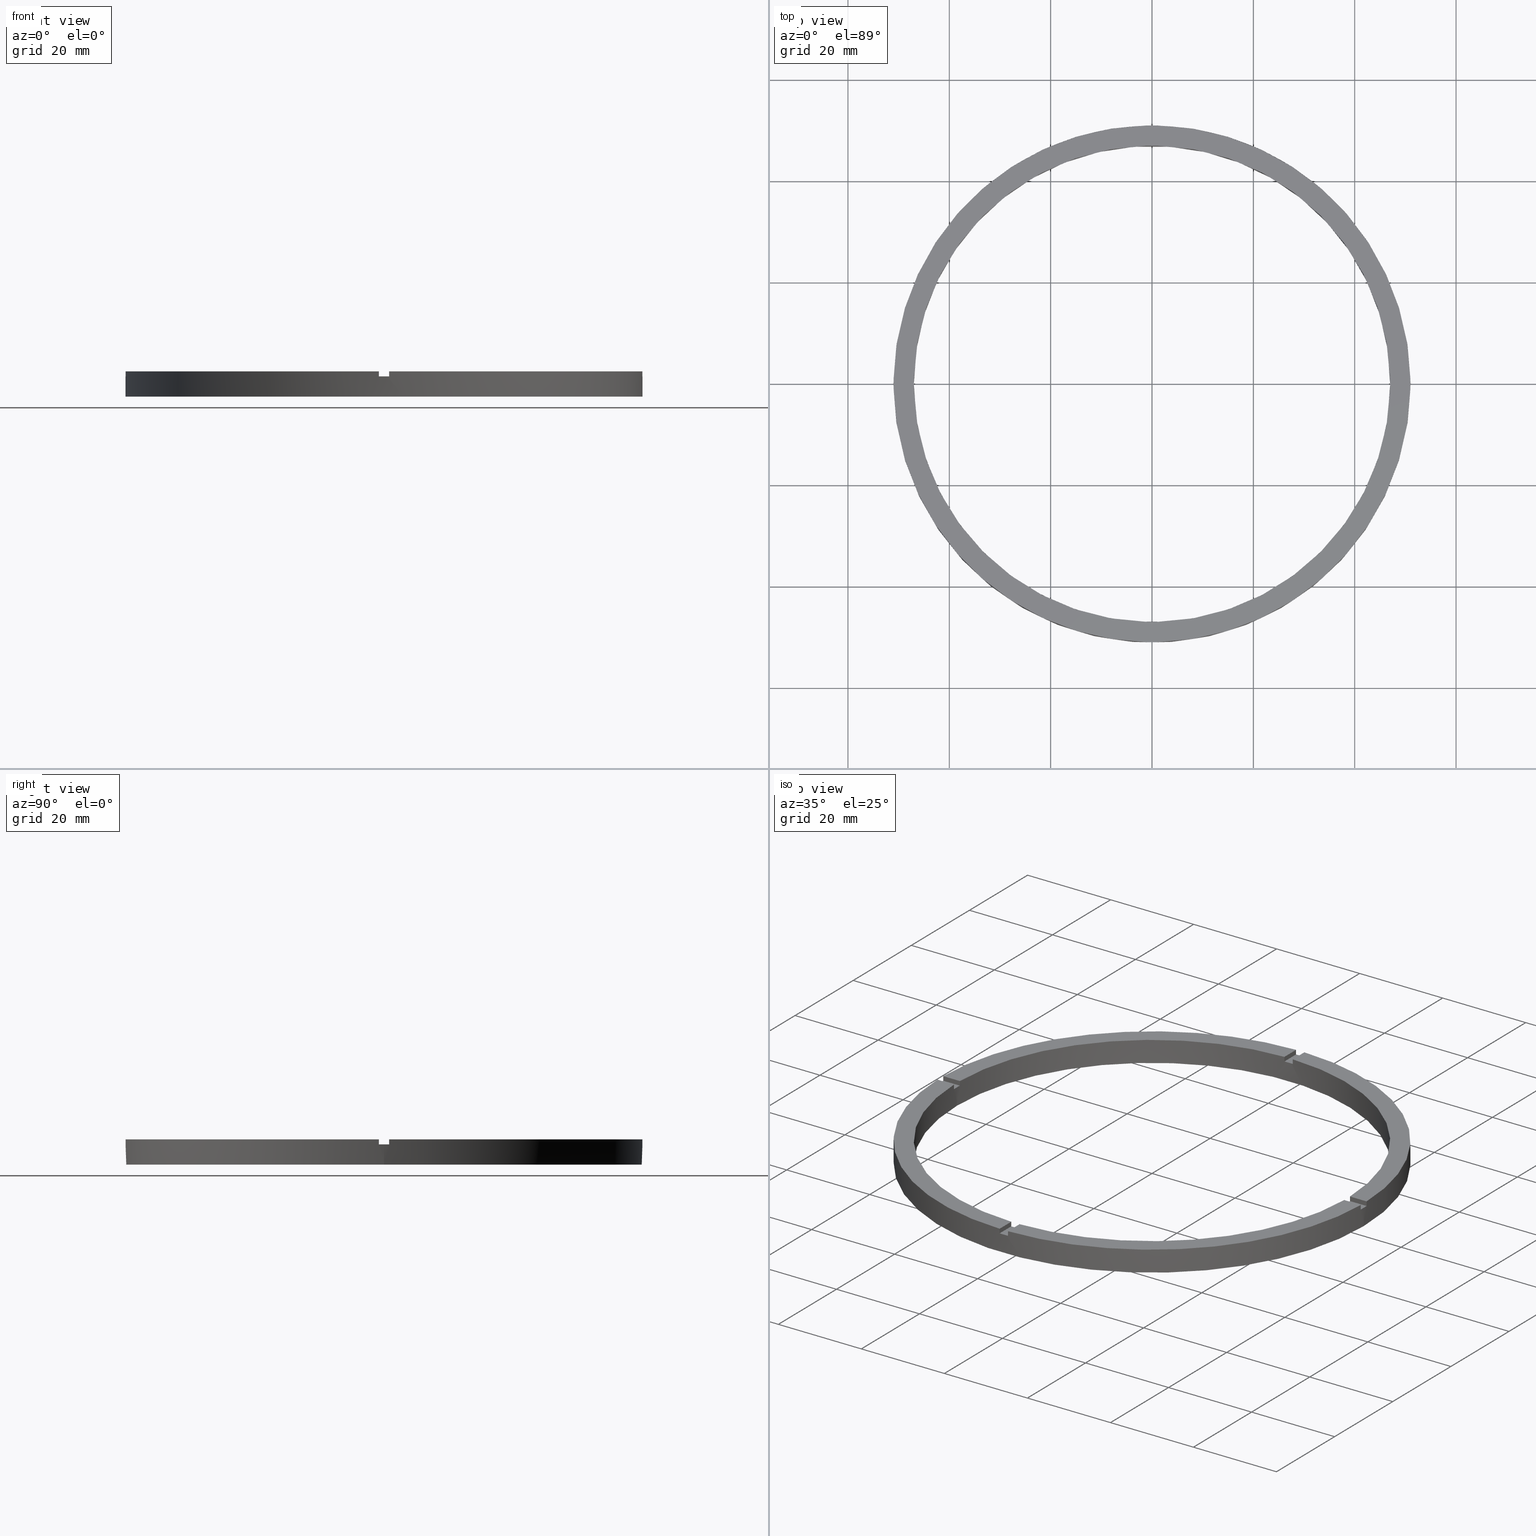
[diagram: canonical four-view strip — front | top / right | iso, engineering-drawing reading convention]
A machine part, canonical four-view strip (front | top / right | iso — engineering-drawing reading convention). The complete STEP part file that produces these views, byte-faithful:
ISO-10303-21;
HEADER;
FILE_DESCRIPTION (( 'STEP AP203' ),
    '1' );
FILE_NAME ('514208.step',
    '2024-12-26T02:48:10',
    ( 'MSI' ),
    ( '' ),
    'SwSTEP 2.0',
    'SolidWorks 2020',
    '' );
FILE_SCHEMA (( 'CONFIG_CONTROL_DESIGN' ));
ENDSEC;

DATA;
#1 = EDGE_LOOP ( 'NONE', ( #37, #546, #415, #716, #717, #163 ) ) ;
#2 = CARTESIAN_POINT ( 'NONE',  ( -1.000000000000157874, -41.00000000000017764, 4.000000000000000000 ) ) ;
#3 = ORIENTED_EDGE ( 'NONE', *, *, #684, .T. ) ;
#4 = CC_DESIGN_DATE_AND_TIME_ASSIGNMENT ( #149, #508, ( #778 ) ) ;
#5 = EDGE_CURVE ( 'NONE', #689, #21, #20, .T. ) ;
#6 = ORIENTED_EDGE ( 'NONE', *, *, #756, .T. ) ;
#7 = VERTEX_POINT ( 'NONE', #592 ) ;
#8 = ORIENTED_EDGE ( 'NONE', *, *, #259, .F. ) ;
#9 = ORIENTED_EDGE ( 'NONE', *, *, #233, .F. ) ;
#10 =( NAMED_UNIT ( * ) PLANE_ANGLE_UNIT ( ) SI_UNIT ( $, .RADIAN. ) );
#11 = CARTESIAN_POINT ( 'NONE',  ( 0.9999999999999731326, 50.99019513592784136, 5.000000000000000000 ) ) ;
#12 = ORIENTED_EDGE ( 'NONE', *, *, #235, .F. ) ;
#13 = VERTEX_POINT ( 'NONE', #441 ) ;
#14 = ORIENTED_EDGE ( 'NONE', *, *, #779, .T. ) ;
#15 = ORIENTED_EDGE ( 'NONE', *, *, #324, .T. ) ;
#16 = CARTESIAN_POINT ( 'NONE',  ( 51.00000000000000000, 6.245698675651500444E-15, 0.000000000000000000 ) ) ;
#17 = DIRECTION ( 'NONE',  ( 0.000000000000000000, 0.000000000000000000, 1.000000000000000000 ) ) ;
#18 = VERTEX_POINT ( 'NONE', #770 ) ;
#19 = DIRECTION ( 'NONE',  ( -0.000000000000000000, -0.000000000000000000, -1.000000000000000000 ) ) ;
#20 = CIRCLE ( 'NONE', #67, 47.00000000000000711 ) ;
#21 = VERTEX_POINT ( 'NONE', #431 ) ;
#22 = EDGE_LOOP ( 'NONE', ( #679, #639, #382, #766 ) ) ;
#23 = PERSON_AND_ORGANIZATION_ROLE ( 'design_owner' ) ;
#24 = CARTESIAN_POINT ( 'NONE',  ( 0.000000000000000000, 0.000000000000000000, 4.000000000000000000 ) ) ;
#25 = DIRECTION ( 'NONE',  ( 1.000000000000000000, 0.000000000000000000, -0.000000000000000000 ) ) ;
#26 = AXIS2_PLACEMENT_3D ( 'NONE', #166, #512, #633 ) ;
#27 = EDGE_LOOP ( 'NONE', ( #170, #231, #36, #544 ) ) ;
#28 = VERTEX_POINT ( 'NONE', #439 ) ;
#29 = ORIENTED_EDGE ( 'NONE', *, *, #329, .F. ) ;
#30 = ORIENTED_EDGE ( 'NONE', *, *, #45, .F. ) ;
#31 = APPROVAL_STATUS ( 'not_yet_approved' ) ;
#32 = CC_DESIGN_SECURITY_CLASSIFICATION ( #74, ( #317 ) ) ;
#33 = EDGE_LOOP ( 'NONE', ( #551, #503, #9, #249 ) ) ;
#34 = CARTESIAN_POINT ( 'NONE',  ( -46.98936049788292024, 0.9999999999999692468, 4.000000000000000000 ) ) ;
#35 = EDGE_LOOP ( 'NONE', ( #759, #3, #29, #150 ) ) ;
#36 = ORIENTED_EDGE ( 'NONE', *, *, #100, .T. ) ;
#37 = ORIENTED_EDGE ( 'NONE', *, *, #299, .T. ) ;
#38 =( LENGTH_UNIT ( ) NAMED_UNIT ( * ) SI_UNIT ( .MILLI., .METRE. ) );
#39 = DIRECTION ( 'NONE',  ( 1.000000000000000000, 1.951563910473907735E-16, 0.000000000000000000 ) ) ;
#40 = ADVANCED_FACE ( 'NONE', ( #287 ), #53, .T. ) ;
#41 = VECTOR ( 'NONE', #242, 1000.000000000000000 ) ;
#42 = AXIS2_PLACEMENT_3D ( 'NONE', #347, #624, #315 ) ;
#43 = PLANE ( 'NONE',  #545 ) ;
#44 = CIRCLE ( 'NONE', #26, 47.00000000000000711 ) ;
#45 = EDGE_CURVE ( 'NONE', #232, #728, #306, .T. ) ;
#46 = LINE ( 'NONE', #189, #305 ) ;
#47 = LINE ( 'NONE', #318, #308 ) ;
#48 = CARTESIAN_POINT ( 'NONE',  ( -50.99019513592784136, -1.000000000000031752, 5.000000000000000000 ) ) ;
#49 = AXIS2_PLACEMENT_3D ( 'NONE', #733, #56, #138 ) ;
#50 = APPROVAL_DATE_TIME ( #312, #531 ) ;
#51 = LOCAL_TIME ( 10, 48, 10.00000000000000000, #581 ) ;
#52 = DIRECTION ( 'NONE',  ( 0.000000000000000000, 0.000000000000000000, 1.000000000000000000 ) ) ;
#53 = PLANE ( 'NONE',  #725 ) ;
#54 = CARTESIAN_POINT ( 'NONE',  ( 0.000000000000000000, 0.000000000000000000, 5.000000000000000000 ) ) ;
#55 = AXIS2_PLACEMENT_3D ( 'NONE', #480, #57, #442 ) ;
#56 = DIRECTION ( 'NONE',  ( -0.000000000000000000, 0.000000000000000000, 1.000000000000000000 ) ) ;
#57 = DIRECTION ( 'NONE',  ( 0.000000000000000000, -0.000000000000000000, 1.000000000000000000 ) ) ;
#58 = LINE ( 'NONE', #575, #76 ) ;
#59 = LINE ( 'NONE', #177, #357 ) ;
#60 = VECTOR ( 'NONE', #333, 1000.000000000000000 ) ;
#61 = CARTESIAN_POINT ( 'NONE',  ( -46.98936049788292024, -1.000000000000030864, 5.000000000000000000 ) ) ;
#62 = FACE_OUTER_BOUND ( 'NONE', #681, .T. ) ;
#63 = CIRCLE ( 'NONE', #489, 47.00000000000000711 ) ;
#64 = CIRCLE ( 'NONE', #557, 47.00000000000000711 ) ;
#65 = LINE ( 'NONE', #510, #596 ) ;
#66 = ADVANCED_FACE ( 'NONE', ( #565 ), #673, .T. ) ;
#67 = AXIS2_PLACEMENT_3D ( 'NONE', #474, #720, #523 ) ;
#68 = FACE_OUTER_BOUND ( 'NONE', #481, .T. ) ;
#69 = VECTOR ( 'NONE', #767, 1000.000000000000000 ) ;
#70 =( GEOMETRIC_REPRESENTATION_CONTEXT ( 3 ) GLOBAL_UNCERTAINTY_ASSIGNED_CONTEXT ( ( #783 ) ) GLOBAL_UNIT_ASSIGNED_CONTEXT ( ( #38, #10, #114 ) ) REPRESENTATION_CONTEXT ( 'NONE', 'WORKASPACE' ) );
#71 = FACE_OUTER_BOUND ( 'NONE', #134, .T. ) ;
#72 = CALENDAR_DATE ( 2024, 26, 12 ) ;
#73 = LINE ( 'NONE', #341, #88 ) ;
#74 = SECURITY_CLASSIFICATION ( '', '', #630 ) ;
#75 = DIRECTION ( 'NONE',  ( 1.301042606982605074E-16, -1.000000000000000000, 0.000000000000000000 ) ) ;
#76 = VECTOR ( 'NONE', #219, 1000.000000000000000 ) ;
#77 = ADVANCED_FACE ( 'NONE', ( #564 ), #288, .F. ) ;
#78 = LINE ( 'NONE', #463, #345 ) ;
#79 = LINE ( 'NONE', #127, #346 ) ;
#80 = FACE_OUTER_BOUND ( 'NONE', #279, .T. ) ;
#81 = CIRCLE ( 'NONE', #186, 51.00000000000000000 ) ;
#82 = EDGE_CURVE ( 'NONE', #289, #136, #47, .T. ) ;
#83 = CARTESIAN_POINT ( 'NONE',  ( 0.000000000000000000, 0.000000000000000000, 0.000000000000000000 ) ) ;
#84 = FACE_OUTER_BOUND ( 'NONE', #35, .T. ) ;
#85 = DIRECTION ( 'NONE',  ( -1.000000000000000000, 0.000000000000000000, 0.000000000000000000 ) ) ;
#86 = EDGE_CURVE ( 'NONE', #509, #464, #44, .T. ) ;
#87 = LINE ( 'NONE', #11, #586 ) ;
#88 = VECTOR ( 'NONE', #580, 1000.000000000000000 ) ;
#89 = AXIS2_PLACEMENT_3D ( 'NONE', #117, #547, #674 ) ;
#90 = VECTOR ( 'NONE', #490, 1000.000000000000000 ) ;
#91 = CARTESIAN_POINT ( 'NONE',  ( 40.99999999999998579, 0.9999999999998443467, 5.000000000000000000 ) ) ;
#92 = CIRCLE ( 'NONE', #483, 47.00000000000000711 ) ;
#93 = DIRECTION ( 'NONE',  ( 0.000000000000000000, 0.000000000000000000, 1.000000000000000000 ) ) ;
#94 = LINE ( 'NONE', #603, #113 ) ;
#95 = LINE ( 'NONE', #162, #637 ) ;
#96 = CIRCLE ( 'NONE', #142, 47.00000000000000711 ) ;
#97 = DIRECTION ( 'NONE',  ( 1.301042606982605074E-16, -1.000000000000000000, 0.000000000000000000 ) ) ;
#98 = DIRECTION ( 'NONE',  ( 0.000000000000000000, 0.000000000000000000, 1.000000000000000000 ) ) ;
#99 = LINE ( 'NONE', #169, #640 ) ;
#100 = EDGE_CURVE ( 'NONE', #161, #524, #310, .T. ) ;
#101 = DIRECTION ( 'NONE',  ( -0.000000000000000000, -1.000000000000000000, -0.000000000000000000 ) ) ;
#102 = VECTOR ( 'NONE', #215, 1000.000000000000000 ) ;
#103 = CIRCLE ( 'NONE', #244, 51.00000000000000000 ) ;
#104 = AXIS2_PLACEMENT_3D ( 'NONE', #203, #662, #303 ) ;
#105 = VECTOR ( 'NONE', #688, 1000.000000000000000 ) ;
#106 = PERSON_AND_ORGANIZATION_ROLE ( 'classification_officer' ) ;
#107 = DIRECTION ( 'NONE',  ( 1.000000000000000000, 0.000000000000000000, 0.000000000000000000 ) ) ;
#108 = LINE ( 'NONE', #61, #369 ) ;
#109 = CARTESIAN_POINT ( 'NONE',  ( 0.000000000000000000, 0.000000000000000000, 5.000000000000000000 ) ) ;
#110 = VECTOR ( 'NONE', #218, 1000.000000000000000 ) ;
#111 = PLANE ( 'NONE',  #224 ) ;
#112 = LINE ( 'NONE', #91, #629 ) ;
#113 = VECTOR ( 'NONE', #361, 1000.000000000000000 ) ;
#114 =( NAMED_UNIT ( * ) SI_UNIT ( $, .STERADIAN. ) SOLID_ANGLE_UNIT ( ) );
#115 = DIRECTION ( 'NONE',  ( 1.301042606982605074E-16, -1.000000000000000000, 0.000000000000000000 ) ) ;
#116 = FACE_OUTER_BOUND ( 'NONE', #253, .T. ) ;
#117 = CARTESIAN_POINT ( 'NONE',  ( 0.000000000000000000, 0.000000000000000000, 4.000000000000000000 ) ) ;
#118 = LINE ( 'NONE', #718, #373 ) ;
#119 = LINE ( 'NONE', #426, #623 ) ;
#120 = CARTESIAN_POINT ( 'NONE',  ( 0.000000000000000000, 0.000000000000000000, 5.000000000000000000 ) ) ;
#121 = EDGE_CURVE ( 'NONE', #548, #446, #567, .T. ) ;
#122 = CARTESIAN_POINT ( 'NONE',  ( 0.000000000000000000, 0.000000000000000000, 4.000000000000000000 ) ) ;
#123 = VECTOR ( 'NONE', #296, 1000.000000000000000 ) ;
#124 = DIRECTION ( 'NONE',  ( 0.000000000000000000, 0.000000000000000000, 1.000000000000000000 ) ) ;
#125 = CIRCLE ( 'NONE', #237, 51.00000000000000000 ) ;
#126 = ORIENTED_EDGE ( 'NONE', *, *, #618, .F. ) ;
#127 = CARTESIAN_POINT ( 'NONE',  ( -50.99019513592784136, 0.9999999999999683586, 5.000000000000000000 ) ) ;
#128 = FACE_OUTER_BOUND ( 'NONE', #255, .T. ) ;
#129 = ORIENTED_EDGE ( 'NONE', *, *, #585, .T. ) ;
#130 = DIRECTION ( 'NONE',  ( 0.000000000000000000, 0.000000000000000000, 1.000000000000000000 ) ) ;
#131 = ORIENTED_EDGE ( 'NONE', *, *, #760, .F. ) ;
#132 = DIRECTION ( 'NONE',  ( 0.000000000000000000, 0.000000000000000000, 1.000000000000000000 ) ) ;
#133 = LOCAL_TIME ( 10, 48, 10.00000000000000000, #156 ) ;
#134 = EDGE_LOOP ( 'NONE', ( #141, #435, #280, #429, #691, #126, #536, #8, #424, #269, #556, #495 ) ) ;
#135 = PERSON_AND_ORGANIZATION ( #493, #143 ) ;
#136 = VERTEX_POINT ( 'NONE', #228 ) ;
#137 = AXIS2_PLACEMENT_3D ( 'NONE', #461, #705, #266 ) ;
#138 = DIRECTION ( 'NONE',  ( 1.000000000000000000, 0.000000000000000000, 0.000000000000000000 ) ) ;
#139 = PERSON_AND_ORGANIZATION ( #493, #143 ) ;
#140 = EDGE_CURVE ( 'NONE', #157, #449, #570, .T. ) ;
#141 = ORIENTED_EDGE ( 'NONE', *, *, #610, .T. ) ;
#142 = AXIS2_PLACEMENT_3D ( 'NONE', #498, #553, #378 ) ;
#143 = ORGANIZATION ( 'δָ��', 'δָ��', '' ) ;
#144 = ORIENTED_EDGE ( 'NONE', *, *, #667, .T. ) ;
#145 = DIRECTION ( 'NONE',  ( 0.000000000000000000, 0.000000000000000000, 1.000000000000000000 ) ) ;
#146 = EDGE_CURVE ( 'NONE', #526, #436, #46, .T. ) ;
#147 = LOCAL_TIME ( 10, 48, 10.00000000000000000, #666 ) ;
#148 = ORIENTED_EDGE ( 'NONE', *, *, #684, .F. ) ;
#149 = DATE_AND_TIME ( #660, #147 ) ;
#150 = ORIENTED_EDGE ( 'NONE', *, *, #454, .F. ) ;
#151 = APPROVAL_PERSON_ORGANIZATION ( #397, #774, #468 ) ;
#152 = ORIENTED_EDGE ( 'NONE', *, *, #488, .F. ) ;
#153 = CALENDAR_DATE ( 2024, 26, 12 ) ;
#154 = ORIENTED_EDGE ( 'NONE', *, *, #344, .F. ) ;
#155 = DIRECTION ( 'NONE',  ( 1.000000000000000000, 0.000000000000000000, 0.000000000000000000 ) ) ;
#156 = COORDINATED_UNIVERSAL_TIME_OFFSET ( 8, 0, .AHEAD. ) ;
#157 = VERTEX_POINT ( 'NONE', #34 ) ;
#158 = CALENDAR_DATE ( 2024, 26, 12 ) ;
#159 = ORIENTED_EDGE ( 'NONE', *, *, #206, .T. ) ;
#160 = ORIENTED_EDGE ( 'NONE', *, *, #210, .F. ) ;
#161 = VERTEX_POINT ( 'NONE', #472 ) ;
#162 = CARTESIAN_POINT ( 'NONE',  ( -1.000000000000026867, 46.98936049788292024, 5.000000000000000000 ) ) ;
#163 = ORIENTED_EDGE ( 'NONE', *, *, #703, .T. ) ;
#164 = ADVANCED_FACE ( 'NONE', ( #84 ), #111, .F. ) ;
#165 = CLOSED_SHELL ( 'NONE', ( #453, #314, #236, #66, #256, #197, #722, #172, #699, #286, #502, #40, #555, #619, #475, #164, #214, #311, #77, #611, #496 ) ) ;
#166 = CARTESIAN_POINT ( 'NONE',  ( 0.000000000000000000, 0.000000000000000000, 5.000000000000000000 ) ) ;
#167 = ORIENTED_EDGE ( 'NONE', *, *, #583, .F. ) ;
#168 = ORIENTED_EDGE ( 'NONE', *, *, #709, .F. ) ;
#169 = CARTESIAN_POINT ( 'NONE',  ( -41.00000000000018474, 0.9999999999999703570, 5.000000000000000000 ) ) ;
#170 = ORIENTED_EDGE ( 'NONE', *, *, #487, .F. ) ;
#171 = VERTEX_POINT ( 'NONE', #715 ) ;
#172 = ADVANCED_FACE ( 'NONE', ( #327 ), #599, .T. ) ;
#173 = ORIENTED_EDGE ( 'NONE', *, *, #457, .T. ) ;
#174 = EDGE_LOOP ( 'NONE', ( #144, #748 ) ) ;
#175 = ORIENTED_EDGE ( 'NONE', *, *, #709, .T. ) ;
#176 = CARTESIAN_POINT ( 'NONE',  ( 0.9999999999998427924, -46.98936049788292735, 4.000000000000000000 ) ) ;
#177 = CARTESIAN_POINT ( 'NONE',  ( -47.00000000000000711, 0.000000000000000000, 5.000000000000000000 ) ) ;
#178 = ORIENTED_EDGE ( 'NONE', *, *, #146, .T. ) ;
#179 = ORIENTED_EDGE ( 'NONE', *, *, #213, .T. ) ;
#180 = EDGE_CURVE ( 'NONE', #7, #739, #65, .T. ) ;
#181 = APPROVAL ( #460, 'δָ��' ) ;
#182 = DIRECTION ( 'NONE',  ( 0.000000000000000000, 0.000000000000000000, 1.000000000000000000 ) ) ;
#183 = CARTESIAN_POINT ( 'NONE',  ( -1.000000000000026867, 46.98936049788292024, 5.000000000000000000 ) ) ;
#184 = DIRECTION ( 'NONE',  ( 1.000000000000000000, 0.000000000000000000, 0.000000000000000000 ) ) ;
#185 = EDGE_CURVE ( 'NONE', #13, #232, #319, .T. ) ;
#186 = AXIS2_PLACEMENT_3D ( 'NONE', #579, #754, #410 ) ;
#187 = APPLICATION_PROTOCOL_DEFINITION ( 'international standard', 'config_control_design', 1994, #505 ) ;
#188 = DIRECTION ( 'NONE',  ( 1.000000000000000000, 0.000000000000000000, 0.000000000000000000 ) ) ;
#189 = CARTESIAN_POINT ( 'NONE',  ( 46.98936049788292024, -1.000000000000155209, 5.000000000000000000 ) ) ;
#190 = EDGE_CURVE ( 'NONE', #449, #301, #59, .T. ) ;
#191 = CARTESIAN_POINT ( 'NONE',  ( 0.000000000000000000, 0.000000000000000000, 4.000000000000000000 ) ) ;
#192 = EDGE_LOOP ( 'NONE', ( #492, #672, #398, #416, #384, #173, #690, #277, #432, #159, #284, #563 ) ) ;
#193 = VERTEX_POINT ( 'NONE', #568 ) ;
#194 = CARTESIAN_POINT ( 'NONE',  ( -47.00000000000000711, 0.000000000000000000, 0.000000000000000000 ) ) ;
#195 = DIRECTION ( 'NONE',  ( 0.000000000000000000, 0.000000000000000000, 1.000000000000000000 ) ) ;
#196 = CARTESIAN_POINT ( 'NONE',  ( 40.99999999999998579, 0.9999999999998443467, 4.000000000000000000 ) ) ;
#197 = ADVANCED_FACE ( 'NONE', ( #337 ), #412, .T. ) ;
#198 = DIRECTION ( 'NONE',  ( -0.000000000000000000, -0.000000000000000000, -1.000000000000000000 ) ) ;
#199 = AXIS2_PLACEMENT_3D ( 'NONE', #701, #744, #402 ) ;
#200 = PLANE ( 'NONE',  #702 ) ;
#201 = ORIENTED_EDGE ( 'NONE', *, *, #618, .T. ) ;
#202 = CARTESIAN_POINT ( 'NONE',  ( 51.00000000000000000, 6.245698675651500444E-15, 5.000000000000000000 ) ) ;
#203 = CARTESIAN_POINT ( 'NONE',  ( 0.9999999999998421263, -41.00000000000017764, 4.000000000000000000 ) ) ;
#204 = ORIENTED_EDGE ( 'NONE', *, *, #756, .F. ) ;
#205 = ORIENTED_EDGE ( 'NONE', *, *, #552, .T. ) ;
#206 = EDGE_CURVE ( 'NONE', #562, #524, #87, .T. ) ;
#207 = ORIENTED_EDGE ( 'NONE', *, *, #777, .T. ) ;
#208 = AXIS2_PLACEMENT_3D ( 'NONE', #261, #455, #400 ) ;
#209 = CARTESIAN_POINT ( 'NONE',  ( 50.99019513592784136, -1.000000000000154987, 5.000000000000000000 ) ) ;
#210 = EDGE_CURVE ( 'NONE', #396, #664, #601, .T. ) ;
#211 = ORIENTED_EDGE ( 'NONE', *, *, #477, .F. ) ;
#212 = PLANE ( 'NONE',  #737 ) ;
#213 = EDGE_CURVE ( 'NONE', #436, #18, #58, .T. ) ;
#214 = ADVANCED_FACE ( 'NONE', ( #68 ), #262, .F. ) ;
#215 = DIRECTION ( 'NONE',  ( -0.000000000000000000, -0.000000000000000000, -1.000000000000000000 ) ) ;
#216 = PRODUCT_DEFINITION_SHAPE ( 'NONE', 'NONE',  #778 ) ;
#217 = PRODUCT ( '514208', '514208', '', ( #514 ) ) ;
#218 = DIRECTION ( 'NONE',  ( -0.000000000000000000, -0.000000000000000000, -1.000000000000000000 ) ) ;
#219 = DIRECTION ( 'NONE',  ( 1.000000000000000000, 6.505213034913025371E-17, 0.000000000000000000 ) ) ;
#220 = DIRECTION ( 'NONE',  ( 0.000000000000000000, 0.000000000000000000, 1.000000000000000000 ) ) ;
#221 = DIRECTION ( 'NONE',  ( 1.951563910473907735E-16, -1.000000000000000000, 0.000000000000000000 ) ) ;
#222 = DIRECTION ( 'NONE',  ( -0.000000000000000000, -0.000000000000000000, -1.000000000000000000 ) ) ;
#223 = DATE_AND_TIME ( #469, #738 ) ;
#224 = AXIS2_PLACEMENT_3D ( 'NONE', #582, #576, #652 ) ;
#225 = APPROVAL_ROLE ( '' ) ;
#226 = DIRECTION ( 'NONE',  ( 1.000000000000000000, 0.000000000000000000, 0.000000000000000000 ) ) ;
#227 = DIRECTION ( 'NONE',  ( -0.000000000000000000, -0.000000000000000000, -1.000000000000000000 ) ) ;
#228 = CARTESIAN_POINT ( 'NONE',  ( -51.00000000000000000, 0.000000000000000000, 0.000000000000000000 ) ) ;
#229 = CC_DESIGN_APPROVAL ( #531, ( #74 ) ) ;
#230 = CARTESIAN_POINT ( 'NONE',  ( 0.000000000000000000, 0.000000000000000000, 5.000000000000000000 ) ) ;
#231 = ORIENTED_EDGE ( 'NONE', *, *, #519, .T. ) ;
#232 = VERTEX_POINT ( 'NONE', #267 ) ;
#233 = EDGE_CURVE ( 'NONE', #193, #21, #320, .T. ) ;
#234 = PLANE ( 'NONE',  #428 ) ;
#235 = EDGE_CURVE ( 'NONE', #246, #396, #73, .T. ) ;
#236 = ADVANCED_FACE ( 'NONE', ( #349 ), #649, .T. ) ;
#237 = AXIS2_PLACEMENT_3D ( 'NONE', #594, #145, #771 ) ;
#238 = CARTESIAN_POINT ( 'NONE',  ( -51.00000000000000000, 0.000000000000000000, 4.000000000000000000 ) ) ;
#239 = DIRECTION ( 'NONE',  ( -1.951563910473907735E-16, 1.000000000000000000, 0.000000000000000000 ) ) ;
#240 = EDGE_CURVE ( 'NONE', #752, #389, #591, .T. ) ;
#241 = DIRECTION ( 'NONE',  ( -0.000000000000000000, -0.000000000000000000, -1.000000000000000000 ) ) ;
#242 = DIRECTION ( 'NONE',  ( -1.301042606982605074E-16, 1.000000000000000000, -0.000000000000000000 ) ) ;
#243 = DIRECTION ( 'NONE',  ( 0.000000000000000000, 0.000000000000000000, -1.000000000000000000 ) ) ;
#244 = AXIS2_PLACEMENT_3D ( 'NONE', #740, #195, #367 ) ;
#245 = ORIENTED_EDGE ( 'NONE', *, *, #185, .T. ) ;
#246 = VERTEX_POINT ( 'NONE', #719 ) ;
#247 = CARTESIAN_POINT ( 'NONE',  ( 0.9999999999999731326, 40.99999999999999289, 4.000000000000000000 ) ) ;
#248 = CARTESIAN_POINT ( 'NONE',  ( -46.98936049788292024, -1.000000000000030864, 5.000000000000000000 ) ) ;
#249 = ORIENTED_EDGE ( 'NONE', *, *, #665, .F. ) ;
#250 = CARTESIAN_POINT ( 'NONE',  ( 46.98936049788292024, -1.000000000000155209, 4.000000000000000000 ) ) ;
#251 = EDGE_CURVE ( 'NONE', #698, #524, #352, .T. ) ;
#252 = CC_DESIGN_PERSON_AND_ORGANIZATION_ASSIGNMENT ( #399, #339, ( #778 ) ) ;
#253 = EDGE_LOOP ( 'NONE', ( #558, #645, #148, #175, #538, #694, #714, #456, #273, #537, #668, #549 ) ) ;
#254 = DIRECTION ( 'NONE',  ( -1.000000000000000000, -1.301042606982605074E-16, 0.000000000000000000 ) ) ;
#255 = EDGE_LOOP ( 'NONE', ( #394, #408 ) ) ;
#256 = ADVANCED_FACE ( 'NONE', ( #595 ), #234, .T. ) ;
#257 = CC_DESIGN_PERSON_AND_ORGANIZATION_ASSIGNMENT ( #135, #566, ( #317 ) ) ;
#258 = AXIS2_PLACEMENT_3D ( 'NONE', #264, #465, #638 ) ;
#259 = EDGE_CURVE ( 'NONE', #642, #464, #78, .T. ) ;
#260 = EDGE_CURVE ( 'NONE', #171, #655, #354, .T. ) ;
#261 = CARTESIAN_POINT ( 'NONE',  ( 0.000000000000000000, 0.000000000000000000, 0.000000000000000000 ) ) ;
#262 = PLANE ( 'NONE',  #258 ) ;
#263 = DIRECTION ( 'NONE',  ( -0.000000000000000000, -0.000000000000000000, -1.000000000000000000 ) ) ;
#264 = CARTESIAN_POINT ( 'NONE',  ( 40.99999999999998579, -1.000000000000155653, 4.000000000000000000 ) ) ;
#265 = DIRECTION ( 'NONE',  ( -0.000000000000000000, -0.000000000000000000, -1.000000000000000000 ) ) ;
#266 = DIRECTION ( 'NONE',  ( 1.000000000000000000, 0.000000000000000000, 0.000000000000000000 ) ) ;
#267 = CARTESIAN_POINT ( 'NONE',  ( 0.9999999999998434586, -50.99019513592784847, 4.000000000000000000 ) ) ;
#268 = ORIENTED_EDGE ( 'NONE', *, *, #430, .T. ) ;
#269 = ORIENTED_EDGE ( 'NONE', *, *, #777, .F. ) ;
#270 = ORIENTED_EDGE ( 'NONE', *, *, #282, .T. ) ;
#271 = CARTESIAN_POINT ( 'NONE',  ( 47.00000000000000711, 5.755839955992561430E-15, 0.000000000000000000 ) ) ;
#272 = DIRECTION ( 'NONE',  ( 0.000000000000000000, 0.000000000000000000, 1.000000000000000000 ) ) ;
#273 = ORIENTED_EDGE ( 'NONE', *, *, #779, .F. ) ;
#274 = DIRECTION ( 'NONE',  ( 0.000000000000000000, 0.000000000000000000, 1.000000000000000000 ) ) ;
#275 = ORIENTED_EDGE ( 'NONE', *, *, #726, .F. ) ;
#276 = ORIENTED_EDGE ( 'NONE', *, *, #240, .T. ) ;
#277 = ORIENTED_EDGE ( 'NONE', *, *, #665, .T. ) ;
#278 = CARTESIAN_POINT ( 'NONE',  ( 0.000000000000000000, 0.000000000000000000, 4.000000000000000000 ) ) ;
#279 = EDGE_LOOP ( 'NONE', ( #268, #411, #420, #6 ) ) ;
#280 = ORIENTED_EDGE ( 'NONE', *, *, #667, .F. ) ;
#281 = CARTESIAN_POINT ( 'NONE',  ( 0.9999999999999731326, 50.99019513592784136, 5.000000000000000000 ) ) ;
#282 = EDGE_CURVE ( 'NONE', #464, #389, #336, .T. ) ;
#283 = ORIENTED_EDGE ( 'NONE', *, *, #86, .F. ) ;
#284 = ORIENTED_EDGE ( 'NONE', *, *, #251, .F. ) ;
#285 = CC_DESIGN_PERSON_AND_ORGANIZATION_ASSIGNMENT ( #403, #23, ( #217 ) ) ;
#286 = ADVANCED_FACE ( 'NONE', ( #604 ), #528, .F. ) ;
#287 = FACE_OUTER_BOUND ( 'NONE', #1, .T. ) ;
#288 = PLANE ( 'NONE',  #363 ) ;
#289 = VERTEX_POINT ( 'NONE', #238 ) ;
#290 = DIRECTION ( 'NONE',  ( 1.000000000000000000, 0.000000000000000000, 0.000000000000000000 ) ) ;
#291 = VERTEX_POINT ( 'NONE', #437 ) ;
#292 = ORIENTED_EDGE ( 'NONE', *, *, #82, .T. ) ;
#293 = DIRECTION ( 'NONE',  ( -1.000000000000000000, 0.000000000000000000, 0.000000000000000000 ) ) ;
#294 = EDGE_LOOP ( 'NONE', ( #211, #675, #297, #167, #245, #751, #298, #661, #425, #676, #292, #687 ) ) ;
#295 = VERTEX_POINT ( 'NONE', #418 ) ;
#296 = DIRECTION ( 'NONE',  ( 0.000000000000000000, 0.000000000000000000, 1.000000000000000000 ) ) ;
#297 = ORIENTED_EDGE ( 'NONE', *, *, #608, .T. ) ;
#298 = ORIENTED_EDGE ( 'NONE', *, *, #541, .T. ) ;
#299 = EDGE_CURVE ( 'NONE', #550, #289, #607, .T. ) ;
#300 = CARTESIAN_POINT ( 'NONE',  ( 46.98936049788292024, -1.000000000000155209, 5.000000000000000000 ) ) ;
#301 = VERTEX_POINT ( 'NONE', #194 ) ;
#302 = ORIENTED_EDGE ( 'NONE', *, *, #610, .F. ) ;
#303 = DIRECTION ( 'NONE',  ( -1.301042606982605074E-16, 1.000000000000000000, 0.000000000000000000 ) ) ;
#304 = AXIS2_PLACEMENT_3D ( 'NONE', #358, #574, #188 ) ;
#305 = VECTOR ( 'NONE', #708, 1000.000000000000000 ) ;
#306 = LINE ( 'NONE', #730, #41 ) ;
#307 = VECTOR ( 'NONE', #533, 1000.000000000000000 ) ;
#308 = VECTOR ( 'NONE', #19, 1000.000000000000000 ) ;
#309 = CARTESIAN_POINT ( 'NONE',  ( -50.99019513592784136, 0.9999999999999683586, 4.000000000000000000 ) ) ;
#310 = LINE ( 'NONE', #467, #307 ) ;
#311 = ADVANCED_FACE ( 'NONE', ( #330 ), #636, .T. ) ;
#312 = DATE_AND_TIME ( #72, #51 ) ;
#313 = CARTESIAN_POINT ( 'NONE',  ( -46.98936049788292024, 0.9999999999999692468, 5.000000000000000000 ) ) ;
#314 = ADVANCED_FACE ( 'NONE', ( #588 ), #598, .T. ) ;
#315 = DIRECTION ( 'NONE',  ( 1.000000000000000000, 0.000000000000000000, 0.000000000000000000 ) ) ;
#316 = APPROVAL_PERSON_ORGANIZATION ( #466, #531, #646 ) ;
#317 = PRODUCT_DEFINITION_FORMATION_WITH_SPECIFIED_SOURCE ( '�κ�', '', #217, .NOT_KNOWN. ) ;
#318 = CARTESIAN_POINT ( 'NONE',  ( -51.00000000000000000, 0.000000000000000000, 5.000000000000000000 ) ) ;
#319 = LINE ( 'NONE', #334, #321 ) ;
#320 = LINE ( 'NONE', #421, #587 ) ;
#321 = VECTOR ( 'NONE', #516, 1000.000000000000000 ) ;
#322 = CARTESIAN_POINT ( 'NONE',  ( -1.000000000000157874, -41.00000000000017764, 4.000000000000000000 ) ) ;
#323 = DIRECTION ( 'NONE',  ( 0.000000000000000000, 0.000000000000000000, 1.000000000000000000 ) ) ;
#324 = EDGE_CURVE ( 'NONE', #526, #171, #331, .T. ) ;
#325 = CIRCLE ( 'NONE', #782, 47.00000000000000711 ) ;
#326 = EDGE_CURVE ( 'NONE', #642, #728, #325, .T. ) ;
#327 = FACE_OUTER_BOUND ( 'NONE', #294, .T. ) ;
#328 = AXIS2_PLACEMENT_3D ( 'NONE', #561, #265, #635 ) ;
#329 = EDGE_CURVE ( 'NONE', #413, #291, #602, .T. ) ;
#330 = FACE_OUTER_BOUND ( 'NONE', #685, .T. ) ;
#331 = LINE ( 'NONE', #659, #60 ) ;
#332 = CARTESIAN_POINT ( 'NONE',  ( -41.00000000000018474, -1.000000000000029754, 5.000000000000000000 ) ) ;
#333 = DIRECTION ( 'NONE',  ( 1.000000000000000000, 6.505213034913025371E-17, 0.000000000000000000 ) ) ;
#334 = CARTESIAN_POINT ( 'NONE',  ( 0.9999999999998434586, -50.99019513592784847, 5.000000000000000000 ) ) ;
#335 = AXIS2_PLACEMENT_3D ( 'NONE', #476, #98, #525 ) ;
#336 = LINE ( 'NONE', #348, #351 ) ;
#337 = FACE_OUTER_BOUND ( 'NONE', #542, .T. ) ;
#338 = SHAPE_DEFINITION_REPRESENTATION ( #216, #775 ) ;
#339 = PERSON_AND_ORGANIZATION_ROLE ( 'creator' ) ;
#340 = DIRECTION ( 'NONE',  ( 0.000000000000000000, 0.000000000000000000, 1.000000000000000000 ) ) ;
#341 = CARTESIAN_POINT ( 'NONE',  ( -1.000000000000026867, 40.99999999999999289, 5.000000000000000000 ) ) ;
#342 = VECTOR ( 'NONE', #647, 1000.000000000000000 ) ;
#343 = LINE ( 'NONE', #366, #90 ) ;
#344 = EDGE_CURVE ( 'NONE', #752, #548, #589, .T. ) ;
#345 = VECTOR ( 'NONE', #52, 1000.000000000000000 ) ;
#346 = VECTOR ( 'NONE', #486, 1000.000000000000000 ) ;
#347 = CARTESIAN_POINT ( 'NONE',  ( 0.000000000000000000, 0.000000000000000000, 5.000000000000000000 ) ) ;
#348 = CARTESIAN_POINT ( 'NONE',  ( -1.000000000000157874, -41.00000000000017764, 5.000000000000000000 ) ) ;
#349 = FACE_OUTER_BOUND ( 'NONE', #763, .T. ) ;
#350 = VECTOR ( 'NONE', #241, 1000.000000000000000 ) ;
#351 = VECTOR ( 'NONE', #115, 1000.000000000000000 ) ;
#352 = CIRCLE ( 'NONE', #735, 51.00000000000000000 ) ;
#353 = DIRECTION ( 'NONE',  ( 0.000000000000000000, 0.000000000000000000, 1.000000000000000000 ) ) ;
#354 = CIRCLE ( 'NONE', #762, 51.00000000000000000 ) ;
#355 = CARTESIAN_POINT ( 'NONE',  ( -41.00000000000018474, 0.9999999999999703570, 4.000000000000000000 ) ) ;
#356 = LINE ( 'NONE', #247, #606 ) ;
#357 = VECTOR ( 'NONE', #222, 1000.000000000000000 ) ;
#358 = CARTESIAN_POINT ( 'NONE',  ( 0.000000000000000000, 0.000000000000000000, 0.000000000000000000 ) ) ;
#359 = FACE_BOUND ( 'NONE', #174, .T. ) ;
#360 = CARTESIAN_POINT ( 'NONE',  ( -1.000000000000026867, 40.99999999999999289, 4.000000000000000000 ) ) ;
#361 = DIRECTION ( 'NONE',  ( -1.301042606982605074E-16, 1.000000000000000000, -0.000000000000000000 ) ) ;
#362 = FACE_OUTER_BOUND ( 'NONE', #650, .T. ) ;
#363 = AXIS2_PLACEMENT_3D ( 'NONE', #360, #414, #500 ) ;
#364 = CIRCLE ( 'NONE', #42, 47.00000000000000711 ) ;
#365 = VECTOR ( 'NONE', #491, 1000.000000000000000 ) ;
#366 = CARTESIAN_POINT ( 'NONE',  ( 50.99019513592784847, 0.9999999999998450129, 5.000000000000000000 ) ) ;
#367 = DIRECTION ( 'NONE',  ( 1.000000000000000000, 0.000000000000000000, 0.000000000000000000 ) ) ;
#368 = CIRCLE ( 'NONE', #55, 51.00000000000000000 ) ;
#369 = VECTOR ( 'NONE', #494, 1000.000000000000000 ) ;
#370 = CARTESIAN_POINT ( 'NONE',  ( -46.98936049788292024, -1.000000000000030864, 4.000000000000000000 ) ) ;
#371 = VECTOR ( 'NONE', #97, 1000.000000000000000 ) ;
#372 = CARTESIAN_POINT ( 'NONE',  ( 0.000000000000000000, 0.000000000000000000, 4.000000000000000000 ) ) ;
#373 = VECTOR ( 'NONE', #220, 1000.000000000000000 ) ;
#374 = LINE ( 'NONE', #451, #383 ) ;
#375 = FACE_OUTER_BOUND ( 'NONE', #539, .T. ) ;
#376 = EDGE_CURVE ( 'NONE', #704, #136, #593, .T. ) ;
#377 = AXIS2_PLACEMENT_3D ( 'NONE', #54, #124, #731 ) ;
#378 = DIRECTION ( 'NONE',  ( 1.000000000000000000, 0.000000000000000000, 0.000000000000000000 ) ) ;
#379 = FACE_OUTER_BOUND ( 'NONE', #27, .T. ) ;
#380 = ORIENTED_EDGE ( 'NONE', *, *, #760, .T. ) ;
#381 = CIRCLE ( 'NONE', #757, 47.00000000000000711 ) ;
#382 = ORIENTED_EDGE ( 'NONE', *, *, #507, .F. ) ;
#383 = VECTOR ( 'NONE', #497, 1000.000000000000000 ) ;
#384 = ORIENTED_EDGE ( 'NONE', *, *, #299, .F. ) ;
#385 = EDGE_CURVE ( 'NONE', #739, #301, #63, .T. ) ;
#386 = CIRCLE ( 'NONE', #377, 51.00000000000000000 ) ;
#387 = ORIENTED_EDGE ( 'NONE', *, *, #541, .F. ) ;
#388 = APPROVAL_PERSON_ORGANIZATION ( #139, #181, #225 ) ;
#389 = VERTEX_POINT ( 'NONE', #729 ) ;
#390 = PERSON_AND_ORGANIZATION ( #493, #143 ) ;
#391 = ORIENTED_EDGE ( 'NONE', *, *, #5, .F. ) ;
#392 = COORDINATED_UNIVERSAL_TIME_OFFSET ( 8, 0, .AHEAD. ) ;
#393 = CARTESIAN_POINT ( 'NONE',  ( 0.9999999999998427924, -46.98936049788292735, 5.000000000000000000 ) ) ;
#394 = ORIENTED_EDGE ( 'NONE', *, *, #506, .F. ) ;
#395 = ORIENTED_EDGE ( 'NONE', *, *, #251, .T. ) ;
#396 = VERTEX_POINT ( 'NONE', #183 ) ;
#397 = PERSON_AND_ORGANIZATION ( #493, #143 ) ;
#398 = ORIENTED_EDGE ( 'NONE', *, *, #376, .T. ) ;
#399 = PERSON_AND_ORGANIZATION ( #493, #143 ) ;
#400 = DIRECTION ( 'NONE',  ( 1.000000000000000000, 0.000000000000000000, 0.000000000000000000 ) ) ;
#401 = ORIENTED_EDGE ( 'NONE', *, *, #185, .F. ) ;
#402 = DIRECTION ( 'NONE',  ( 1.000000000000000000, 0.000000000000000000, -0.000000000000000000 ) ) ;
#403 = PERSON_AND_ORGANIZATION ( #493, #143 ) ;
#404 = ORIENTED_EDGE ( 'NONE', *, *, #703, .F. ) ;
#405 = DATE_AND_TIME ( #158, #663 ) ;
#406 = ORIENTED_EDGE ( 'NONE', *, *, #324, .F. ) ;
#407 = DATE_AND_TIME ( #153, #133 ) ;
#408 = ORIENTED_EDGE ( 'NONE', *, *, #376, .F. ) ;
#409 = APPROVAL_STATUS ( 'not_yet_approved' ) ;
#410 = DIRECTION ( 'NONE',  ( 1.000000000000000000, 0.000000000000000000, 0.000000000000000000 ) ) ;
#411 = ORIENTED_EDGE ( 'NONE', *, *, #45, .T. ) ;
#412 = PLANE ( 'NONE',  #450 ) ;
#413 = VERTEX_POINT ( 'NONE', #518 ) ;
#414 = DIRECTION ( 'NONE',  ( -1.000000000000000000, 0.000000000000000000, 0.000000000000000000 ) ) ;
#415 = ORIENTED_EDGE ( 'NONE', *, *, #121, .T. ) ;
#416 = ORIENTED_EDGE ( 'NONE', *, *, #82, .F. ) ;
#417 = DIRECTION ( 'NONE',  ( -1.000000000000000000, -1.951563910473907735E-16, 0.000000000000000000 ) ) ;
#418 = CARTESIAN_POINT ( 'NONE',  ( 46.98936049788292735, 0.9999999999998447908, 5.000000000000000000 ) ) ;
#419 = CC_DESIGN_PERSON_AND_ORGANIZATION_ASSIGNMENT ( #651, #106, ( #74 ) ) ;
#420 = ORIENTED_EDGE ( 'NONE', *, *, #326, .F. ) ;
#421 = CARTESIAN_POINT ( 'NONE',  ( -1.000000000000026867, 40.99999999999999289, 4.000000000000000000 ) ) ;
#422 = ORIENTED_EDGE ( 'NONE', *, *, #260, .T. ) ;
#423 = CARTESIAN_POINT ( 'NONE',  ( 0.000000000000000000, 0.000000000000000000, 4.000000000000000000 ) ) ;
#424 = ORIENTED_EDGE ( 'NONE', *, *, #326, .T. ) ;
#425 = ORIENTED_EDGE ( 'NONE', *, *, #344, .T. ) ;
#426 = CARTESIAN_POINT ( 'NONE',  ( -41.00000000000018474, 0.9999999999999703570, 4.000000000000000000 ) ) ;
#427 = CARTESIAN_POINT ( 'NONE',  ( 0.000000000000000000, 0.000000000000000000, 0.000000000000000000 ) ) ;
#428 = AXIS2_PLACEMENT_3D ( 'NONE', #120, #340, #482 ) ;
#429 = ORIENTED_EDGE ( 'NONE', *, *, #190, .F. ) ;
#430 = EDGE_CURVE ( 'NONE', #28, #232, #81, .T. ) ;
#431 = CARTESIAN_POINT ( 'NONE',  ( -1.000000000000026867, 46.98936049788292024, 4.000000000000000000 ) ) ;
#432 = ORIENTED_EDGE ( 'NONE', *, *, #511, .F. ) ;
#433 = AXIS2_PLACEMENT_3D ( 'NONE', #609, #741, #781 ) ;
#434 = EDGE_CURVE ( 'NONE', #534, #436, #64, .T. ) ;
#435 = ORIENTED_EDGE ( 'NONE', *, *, #180, .T. ) ;
#436 = VERTEX_POINT ( 'NONE', #300 ) ;
#437 = CARTESIAN_POINT ( 'NONE',  ( 46.98936049788292735, 0.9999999999998447908, 4.000000000000000000 ) ) ;
#438 = AXIS2_PLACEMENT_3D ( 'NONE', #470, #221, #39 ) ;
#439 = CARTESIAN_POINT ( 'NONE',  ( -1.000000000000156541, -50.99019513592784136, 4.000000000000000000 ) ) ;
#440 = DIRECTION ( 'NONE',  ( 0.000000000000000000, 1.000000000000000000, 0.000000000000000000 ) ) ;
#441 = CARTESIAN_POINT ( 'NONE',  ( 0.9999999999998434586, -50.99019513592784847, 5.000000000000000000 ) ) ;
#442 = DIRECTION ( 'NONE',  ( 1.000000000000000000, 0.000000000000000000, 0.000000000000000000 ) ) ;
#443 = CARTESIAN_POINT ( 'NONE',  ( -47.00000000000000711, 0.000000000000000000, 4.000000000000000000 ) ) ;
#444 = EDGE_LOOP ( 'NONE', ( #380, #201, #747, #154 ) ) ;
#445 = DIRECTION ( 'NONE',  ( -1.000000000000000000, -1.951563910473907735E-16, 0.000000000000000000 ) ) ;
#446 = VERTEX_POINT ( 'NONE', #370 ) ;
#447 = CARTESIAN_POINT ( 'NONE',  ( 0.000000000000000000, 0.000000000000000000, 5.000000000000000000 ) ) ;
#448 = CARTESIAN_POINT ( 'NONE',  ( -50.99019513592784136, 0.9999999999999683586, 5.000000000000000000 ) ) ;
#449 = VERTEX_POINT ( 'NONE', #443 ) ;
#450 = AXIS2_PLACEMENT_3D ( 'NONE', #755, #17, #25 ) ;
#451 = CARTESIAN_POINT ( 'NONE',  ( 46.98936049788292735, 0.9999999999998447908, 5.000000000000000000 ) ) ;
#452 = DIRECTION ( 'NONE',  ( -0.000000000000000000, -0.000000000000000000, -1.000000000000000000 ) ) ;
#453 = ADVANCED_FACE ( 'NONE', ( #71 ), #600, .F. ) ;
#454 = EDGE_CURVE ( 'NONE', #698, #413, #343, .T. ) ;
#455 = DIRECTION ( 'NONE',  ( 0.000000000000000000, 0.000000000000000000, 1.000000000000000000 ) ) ;
#456 = ORIENTED_EDGE ( 'NONE', *, *, #210, .T. ) ;
#457 = EDGE_CURVE ( 'NONE', #550, #501, #79, .T. ) ;
#458 = ORIENTED_EDGE ( 'NONE', *, *, #457, .F. ) ;
#459 = AXIS2_PLACEMENT_3D ( 'NONE', #447, #198, #293 ) ;
#460 = APPROVAL_STATUS ( 'not_yet_approved' ) ;
#461 = CARTESIAN_POINT ( 'NONE',  ( 0.000000000000000000, 0.000000000000000000, 5.000000000000000000 ) ) ;
#462 = CARTESIAN_POINT ( 'NONE',  ( 50.99019513592784847, 0.9999999999998450129, 5.000000000000000000 ) ) ;
#463 = CARTESIAN_POINT ( 'NONE',  ( -1.000000000000157208, -46.98936049788292024, 5.000000000000000000 ) ) ;
#464 = VERTEX_POINT ( 'NONE', #772 ) ;
#465 = DIRECTION ( 'NONE',  ( 6.505213034913025371E-17, -1.000000000000000000, 0.000000000000000000 ) ) ;
#466 = PERSON_AND_ORGANIZATION ( #493, #143 ) ;
#467 = CARTESIAN_POINT ( 'NONE',  ( 0.9999999999999731326, 40.99999999999999289, 5.000000000000000000 ) ) ;
#468 = APPROVAL_ROLE ( '' ) ;
#469 = CALENDAR_DATE ( 2024, 26, 12 ) ;
#470 = CARTESIAN_POINT ( 'NONE',  ( -41.00000000000018474, -1.000000000000029754, 4.000000000000000000 ) ) ;
#471 = ORIENTED_EDGE ( 'NONE', *, *, #487, .T. ) ;
#472 = CARTESIAN_POINT ( 'NONE',  ( 0.9999999999999731326, 46.98936049788292024, 5.000000000000000000 ) ) ;
#473 = CARTESIAN_POINT ( 'NONE',  ( -50.99019513592784136, -1.000000000000031752, 5.000000000000000000 ) ) ;
#474 = CARTESIAN_POINT ( 'NONE',  ( 0.000000000000000000, 0.000000000000000000, 4.000000000000000000 ) ) ;
#475 = ADVANCED_FACE ( 'NONE', ( #80 ), #686, .T. ) ;
#476 = CARTESIAN_POINT ( 'NONE',  ( 0.000000000000000000, 0.000000000000000000, 4.000000000000000000 ) ) ;
#477 = EDGE_CURVE ( 'NONE', #655, #704, #605, .T. ) ;
#478 = DIRECTION ( 'NONE',  ( 1.000000000000000000, 0.000000000000000000, -0.000000000000000000 ) ) ;
#479 = AXIS2_PLACEMENT_3D ( 'NONE', #710, #182, #573 ) ;
#480 = CARTESIAN_POINT ( 'NONE',  ( 0.000000000000000000, 0.000000000000000000, 4.000000000000000000 ) ) ;
#481 = EDGE_LOOP ( 'NONE', ( #406, #178, #179, #554 ) ) ;
#482 = DIRECTION ( 'NONE',  ( 1.000000000000000000, 0.000000000000000000, -0.000000000000000000 ) ) ;
#483 = AXIS2_PLACEMENT_3D ( 'NONE', #768, #693, #721 ) ;
#484 = CARTESIAN_POINT ( 'NONE',  ( -50.99019513592784136, -1.000000000000031752, 4.000000000000000000 ) ) ;
#485 = MANIFOLD_SOLID_BREP ( '�г�-����1', #165 ) ;
#486 = DIRECTION ( 'NONE',  ( 0.000000000000000000, 0.000000000000000000, 1.000000000000000000 ) ) ;
#487 = EDGE_CURVE ( 'NONE', #689, #562, #356, .T. ) ;
#488 = EDGE_CURVE ( 'NONE', #7, #291, #92, .T. ) ;
#489 = AXIS2_PLACEMENT_3D ( 'NONE', #427, #597, #678 ) ;
#490 = DIRECTION ( 'NONE',  ( -0.000000000000000000, -0.000000000000000000, -1.000000000000000000 ) ) ;
#491 = DIRECTION ( 'NONE',  ( 0.000000000000000000, 0.000000000000000000, 1.000000000000000000 ) ) ;
#492 = ORIENTED_EDGE ( 'NONE', *, *, #585, .F. ) ;
#493 = PERSON ( 'δָ��', 'δָ��', 'δָ��', ('δָ��'), ('δָ��'), ('δָ��') ) ;
#494 = DIRECTION ( 'NONE',  ( -0.000000000000000000, -0.000000000000000000, -1.000000000000000000 ) ) ;
#495 = ORIENTED_EDGE ( 'NONE', *, *, #146, .F. ) ;
#496 = ADVANCED_FACE ( 'NONE', ( #62 ), #734, .T. ) ;
#497 = DIRECTION ( 'NONE',  ( -0.000000000000000000, -0.000000000000000000, -1.000000000000000000 ) ) ;
#498 = CARTESIAN_POINT ( 'NONE',  ( 0.000000000000000000, 0.000000000000000000, 4.000000000000000000 ) ) ;
#499 = AXIS2_PLACEMENT_3D ( 'NONE', #626, #707, #85 ) ;
#500 = DIRECTION ( 'NONE',  ( 0.000000000000000000, 0.000000000000000000, 1.000000000000000000 ) ) ;
#501 = VERTEX_POINT ( 'NONE', #448 ) ;
#502 = ADVANCED_FACE ( 'NONE', ( #620 ), #43, .F. ) ;
#503 = ORIENTED_EDGE ( 'NONE', *, *, #671, .T. ) ;
#504 = PRODUCT_RELATED_PRODUCT_CATEGORY ( 'detail', '', ( #217 ) ) ;
#505 = APPLICATION_CONTEXT ( 'configuration controlled 3d designs of mechanical parts and assemblies' ) ;
#506 = EDGE_CURVE ( 'NONE', #136, #704, #103, .T. ) ;
#507 = EDGE_CURVE ( 'NONE', #13, #534, #94, .T. ) ;
#508 = DATE_TIME_ROLE ( 'creation_date' ) ;
#509 = VERTEX_POINT ( 'NONE', #248 ) ;
#510 = CARTESIAN_POINT ( 'NONE',  ( 47.00000000000000711, 5.755839955992561430E-15, 5.000000000000000000 ) ) ;
#511 = EDGE_CURVE ( 'NONE', #562, #193, #368, .T. ) ;
#512 = DIRECTION ( 'NONE',  ( 0.000000000000000000, 0.000000000000000000, 1.000000000000000000 ) ) ;
#513 = AXIS2_PLACEMENT_3D ( 'NONE', #372, #540, #155 ) ;
#514 = MECHANICAL_CONTEXT ( 'NONE', #505, 'mechanical' ) ;
#515 = DIRECTION ( 'NONE',  ( 0.000000000000000000, 0.000000000000000000, 1.000000000000000000 ) ) ;
#516 = DIRECTION ( 'NONE',  ( -0.000000000000000000, -0.000000000000000000, -1.000000000000000000 ) ) ;
#517 = PERSON_AND_ORGANIZATION_ROLE ( 'design_supplier' ) ;
#518 = CARTESIAN_POINT ( 'NONE',  ( 50.99019513592784847, 0.9999999999998450129, 4.000000000000000000 ) ) ;
#519 = EDGE_CURVE ( 'NONE', #689, #161, #612, .T. ) ;
#520 = DESIGN_CONTEXT ( 'detailed design', #753, 'design' ) ;
#521 = DIRECTION ( 'NONE',  ( 1.000000000000000000, 0.000000000000000000, 0.000000000000000000 ) ) ;
#522 = DIRECTION ( 'NONE',  ( 1.000000000000000000, 0.000000000000000000, 0.000000000000000000 ) ) ;
#523 = DIRECTION ( 'NONE',  ( 1.000000000000000000, 0.000000000000000000, 0.000000000000000000 ) ) ;
#524 = VERTEX_POINT ( 'NONE', #281 ) ;
#525 = DIRECTION ( 'NONE',  ( 1.000000000000000000, 0.000000000000000000, -0.000000000000000000 ) ) ;
#526 = VERTEX_POINT ( 'NONE', #250 ) ;
#527 = CARTESIAN_POINT ( 'NONE',  ( -1.000000000000156541, -50.99019513592784136, 5.000000000000000000 ) ) ;
#528 = PLANE ( 'NONE',  #438 ) ;
#529 = AXIS2_PLACEMENT_3D ( 'NONE', #423, #641, #521 ) ;
#530 = CARTESIAN_POINT ( 'NONE',  ( 0.9999999999999731326, 50.99019513592784136, 4.000000000000000000 ) ) ;
#531 = APPROVAL ( #31, 'δָ��' ) ;
#532 = ORIENTED_EDGE ( 'NONE', *, *, #622, .T. ) ;
#533 = DIRECTION ( 'NONE',  ( 0.000000000000000000, 1.000000000000000000, 0.000000000000000000 ) ) ;
#534 = VERTEX_POINT ( 'NONE', #773 ) ;
#535 = CARTESIAN_POINT ( 'NONE',  ( 0.9999999999999731326, 46.98936049788292024, 5.000000000000000000 ) ) ;
#536 = ORIENTED_EDGE ( 'NONE', *, *, #86, .T. ) ;
#537 = ORIENTED_EDGE ( 'NONE', *, *, #140, .T. ) ;
#538 = ORIENTED_EDGE ( 'NONE', *, *, #519, .F. ) ;
#539 = EDGE_LOOP ( 'NONE', ( #669, #207, #30, #401 ) ) ;
#540 = DIRECTION ( 'NONE',  ( 0.000000000000000000, 0.000000000000000000, 1.000000000000000000 ) ) ;
#541 = EDGE_CURVE ( 'NONE', #28, #389, #634, .T. ) ;
#542 = EDGE_LOOP ( 'NONE', ( #543, #283, #131, #276 ) ) ;
#543 = ORIENTED_EDGE ( 'NONE', *, *, #282, .F. ) ;
#544 = ORIENTED_EDGE ( 'NONE', *, *, #206, .F. ) ;
#545 = AXIS2_PLACEMENT_3D ( 'NONE', #355, #239, #445 ) ;
#546 = ORIENTED_EDGE ( 'NONE', *, *, #736, .T. ) ;
#547 = DIRECTION ( 'NONE',  ( 0.000000000000000000, -0.000000000000000000, 1.000000000000000000 ) ) ;
#548 = VERTEX_POINT ( 'NONE', #484 ) ;
#549 = ORIENTED_EDGE ( 'NONE', *, *, #385, .F. ) ;
#550 = VERTEX_POINT ( 'NONE', #309 ) ;
#551 = ORIENTED_EDGE ( 'NONE', *, *, #235, .T. ) ;
#552 = EDGE_CURVE ( 'NONE', #246, #501, #125, .T. ) ;
#553 = DIRECTION ( 'NONE',  ( 0.000000000000000000, 0.000000000000000000, 1.000000000000000000 ) ) ;
#554 = ORIENTED_EDGE ( 'NONE', *, *, #608, .F. ) ;
#555 = ADVANCED_FACE ( 'NONE', ( #375 ), #724, .F. ) ;
#556 = ORIENTED_EDGE ( 'NONE', *, *, #434, .T. ) ;
#557 = AXIS2_PLACEMENT_3D ( 'NONE', #230, #272, #522 ) ;
#558 = ORIENTED_EDGE ( 'NONE', *, *, #180, .F. ) ;
#559 = ORIENTED_EDGE ( 'NONE', *, *, #511, .T. ) ;
#560 = EDGE_LOOP ( 'NONE', ( #404, #14, #532, #458 ) ) ;
#561 = CARTESIAN_POINT ( 'NONE',  ( 0.000000000000000000, 0.000000000000000000, 5.000000000000000000 ) ) ;
#562 = VERTEX_POINT ( 'NONE', #530 ) ;
#563 = ORIENTED_EDGE ( 'NONE', *, *, #454, .T. ) ;
#564 = FACE_OUTER_BOUND ( 'NONE', #33, .T. ) ;
#565 = FACE_OUTER_BOUND ( 'NONE', #692, .T. ) ;
#566 = PERSON_AND_ORGANIZATION_ROLE ( 'creator' ) ;
#567 = LINE ( 'NONE', #780, #569 ) ;
#568 = CARTESIAN_POINT ( 'NONE',  ( -1.000000000000026867, 50.99019513592784136, 4.000000000000000000 ) ) ;
#569 = VECTOR ( 'NONE', #758, 1000.000000000000000 ) ;
#570 = CIRCLE ( 'NONE', #529, 47.00000000000000711 ) ;
#571 = AXIS2_PLACEMENT_3D ( 'NONE', #713, #93, #184 ) ;
#572 = CC_DESIGN_APPROVAL ( #181, ( #778 ) ) ;
#573 = DIRECTION ( 'NONE',  ( 1.000000000000000000, 0.000000000000000000, 0.000000000000000000 ) ) ;
#574 = DIRECTION ( 'NONE',  ( 0.000000000000000000, 0.000000000000000000, 1.000000000000000000 ) ) ;
#575 = CARTESIAN_POINT ( 'NONE',  ( 40.99999999999998579, -1.000000000000155653, 5.000000000000000000 ) ) ;
#576 = DIRECTION ( 'NONE',  ( -6.505213034913025371E-17, 1.000000000000000000, 0.000000000000000000 ) ) ;
#577 = CC_DESIGN_APPROVAL ( #774, ( #317 ) ) ;
#578 = DATE_TIME_ROLE ( 'classification_date' ) ;
#579 = CARTESIAN_POINT ( 'NONE',  ( 0.000000000000000000, 0.000000000000000000, 4.000000000000000000 ) ) ;
#580 = DIRECTION ( 'NONE',  ( -0.000000000000000000, -1.000000000000000000, -0.000000000000000000 ) ) ;
#581 = COORDINATED_UNIVERSAL_TIME_OFFSET ( 8, 0, .AHEAD. ) ;
#582 = CARTESIAN_POINT ( 'NONE',  ( 40.99999999999998579, 0.9999999999998443467, 4.000000000000000000 ) ) ;
#583 = EDGE_CURVE ( 'NONE', #13, #18, #386, .T. ) ;
#584 = DIRECTION ( 'NONE',  ( 0.000000000000000000, 0.000000000000000000, 1.000000000000000000 ) ) ;
#585 = EDGE_CURVE ( 'NONE', #655, #413, #614, .T. ) ;
#586 = VECTOR ( 'NONE', #323, 1000.000000000000000 ) ;
#587 = VECTOR ( 'NONE', #101, 1000.000000000000000 ) ;
#588 = FACE_OUTER_BOUND ( 'NONE', #192, .T. ) ;
#589 = LINE ( 'NONE', #48, #342 ) ;
#590 = CARTESIAN_POINT ( 'NONE',  ( 0.000000000000000000, 0.000000000000000000, 5.000000000000000000 ) ) ;
#591 = CIRCLE ( 'NONE', #137, 51.00000000000000000 ) ;
#592 = CARTESIAN_POINT ( 'NONE',  ( 47.00000000000000711, 5.755839955992561430E-15, 4.000000000000000000 ) ) ;
#593 = CIRCLE ( 'NONE', #304, 51.00000000000000000 ) ;
#594 = CARTESIAN_POINT ( 'NONE',  ( 0.000000000000000000, 0.000000000000000000, 5.000000000000000000 ) ) ;
#595 = FACE_OUTER_BOUND ( 'NONE', #22, .T. ) ;
#596 = VECTOR ( 'NONE', #227, 1000.000000000000000 ) ;
#597 = DIRECTION ( 'NONE',  ( 0.000000000000000000, 0.000000000000000000, 1.000000000000000000 ) ) ;
#598 = CYLINDRICAL_SURFACE ( 'NONE', #712, 51.00000000000000000 ) ;
#599 = CYLINDRICAL_SURFACE ( 'NONE', #499, 51.00000000000000000 ) ;
#600 = CYLINDRICAL_SURFACE ( 'NONE', #459, 47.00000000000000711 ) ;
#601 = CIRCLE ( 'NONE', #571, 47.00000000000000711 ) ;
#602 = LINE ( 'NONE', #196, #69 ) ;
#603 = CARTESIAN_POINT ( 'NONE',  ( 0.9999999999998421263, -41.00000000000017764, 5.000000000000000000 ) ) ;
#604 = FACE_OUTER_BOUND ( 'NONE', #444, .T. ) ;
#605 = LINE ( 'NONE', #202, #350 ) ;
#606 = VECTOR ( 'NONE', #440, 1000.000000000000000 ) ;
#607 = CIRCLE ( 'NONE', #613, 51.00000000000000000 ) ;
#608 = EDGE_CURVE ( 'NONE', #171, #18, #632, .T. ) ;
#609 = CARTESIAN_POINT ( 'NONE',  ( 0.000000000000000000, 0.000000000000000000, 0.000000000000000000 ) ) ;
#610 = EDGE_CURVE ( 'NONE', #526, #7, #381, .T. ) ;
#611 = ADVANCED_FACE ( 'NONE', ( #379 ), #200, .F. ) ;
#612 = LINE ( 'NONE', #535, #105 ) ;
#613 = AXIS2_PLACEMENT_3D ( 'NONE', #191, #515, #769 ) ;
#614 = CIRCLE ( 'NONE', #513, 51.00000000000000000 ) ;
#615 = LINE ( 'NONE', #393, #110 ) ;
#616 = DIRECTION ( 'NONE',  ( -1.000000000000000000, -1.951563910473907735E-16, 0.000000000000000000 ) ) ;
#617 = CIRCLE ( 'NONE', #479, 51.00000000000000000 ) ;
#618 = EDGE_CURVE ( 'NONE', #509, #446, #108, .T. ) ;
#619 = ADVANCED_FACE ( 'NONE', ( #362 ), #212, .F. ) ;
#620 = FACE_OUTER_BOUND ( 'NONE', #560, .T. ) ;
#621 = LINE ( 'NONE', #696, #102 ) ;
#622 = EDGE_CURVE ( 'NONE', #664, #501, #99, .T. ) ;
#623 = VECTOR ( 'NONE', #417, 1000.000000000000000 ) ;
#624 = DIRECTION ( 'NONE',  ( 0.000000000000000000, 0.000000000000000000, 1.000000000000000000 ) ) ;
#625 = VECTOR ( 'NONE', #658, 1000.000000000000000 ) ;
#626 = CARTESIAN_POINT ( 'NONE',  ( 0.000000000000000000, 0.000000000000000000, 5.000000000000000000 ) ) ;
#627 = CYLINDRICAL_SURFACE ( 'NONE', #328, 47.00000000000000711 ) ;
#628 = CIRCLE ( 'NONE', #433, 47.00000000000000711 ) ;
#629 = VECTOR ( 'NONE', #743, 1000.000000000000000 ) ;
#630 = SECURITY_CLASSIFICATION_LEVEL ( 'unclassified' ) ;
#631 = LINE ( 'NONE', #332, #625 ) ;
#632 = LINE ( 'NONE', #209, #123 ) ;
#633 = DIRECTION ( 'NONE',  ( 1.000000000000000000, 0.000000000000000000, 0.000000000000000000 ) ) ;
#634 = LINE ( 'NONE', #527, #365 ) ;
#635 = DIRECTION ( 'NONE',  ( -1.000000000000000000, 0.000000000000000000, 0.000000000000000000 ) ) ;
#636 = PLANE ( 'NONE',  #335 ) ;
#637 = VECTOR ( 'NONE', #452, 1000.000000000000000 ) ;
#638 = DIRECTION ( 'NONE',  ( 1.000000000000000000, 6.505213034913025371E-17, 0.000000000000000000 ) ) ;
#639 = ORIENTED_EDGE ( 'NONE', *, *, #434, .F. ) ;
#640 = VECTOR ( 'NONE', #616, 1000.000000000000000 ) ;
#641 = DIRECTION ( 'NONE',  ( 0.000000000000000000, 0.000000000000000000, 1.000000000000000000 ) ) ;
#642 = VERTEX_POINT ( 'NONE', #742 ) ;
#643 = LINE ( 'NONE', #322, #371 ) ;
#644 = ORIENTED_EDGE ( 'NONE', *, *, #329, .T. ) ;
#645 = ORIENTED_EDGE ( 'NONE', *, *, #488, .T. ) ;
#646 = APPROVAL_ROLE ( '' ) ;
#647 = DIRECTION ( 'NONE',  ( -0.000000000000000000, -0.000000000000000000, -1.000000000000000000 ) ) ;
#648 = APPROVAL_DATE_TIME ( #407, #774 ) ;
#649 = PLANE ( 'NONE',  #199 ) ;
#650 = EDGE_LOOP ( 'NONE', ( #204, #677, #270, #387 ) ) ;
#651 = PERSON_AND_ORGANIZATION ( #493, #143 ) ;
#652 = DIRECTION ( 'NONE',  ( -1.000000000000000000, -6.505213034913025371E-17, 0.000000000000000000 ) ) ;
#653 = ORIENTED_EDGE ( 'NONE', *, *, #622, .F. ) ;
#654 = COORDINATED_UNIVERSAL_TIME_OFFSET ( 8, 0, .AHEAD. ) ;
#655 = VERTEX_POINT ( 'NONE', #695 ) ;
#656 = APPROVAL_DATE_TIME ( #405, #181 ) ;
#657 = ORIENTED_EDGE ( 'NONE', *, *, #100, .F. ) ;
#658 = DIRECTION ( 'NONE',  ( 1.000000000000000000, 1.951563910473907735E-16, -0.000000000000000000 ) ) ;
#659 = CARTESIAN_POINT ( 'NONE',  ( 40.99999999999998579, -1.000000000000155653, 4.000000000000000000 ) ) ;
#660 = CALENDAR_DATE ( 2024, 26, 12 ) ;
#661 = ORIENTED_EDGE ( 'NONE', *, *, #240, .F. ) ;
#662 = DIRECTION ( 'NONE',  ( 1.000000000000000000, 1.301042606982605074E-16, 0.000000000000000000 ) ) ;
#663 = LOCAL_TIME ( 10, 48, 10.00000000000000000, #654 ) ;
#664 = VERTEX_POINT ( 'NONE', #313 ) ;
#665 = EDGE_CURVE ( 'NONE', #246, #193, #621, .T. ) ;
#666 = COORDINATED_UNIVERSAL_TIME_OFFSET ( 8, 0, .AHEAD. ) ;
#667 = EDGE_CURVE ( 'NONE', #301, #739, #628, .T. ) ;
#668 = ORIENTED_EDGE ( 'NONE', *, *, #190, .T. ) ;
#669 = ORIENTED_EDGE ( 'NONE', *, *, #507, .T. ) ;
#670 = DIRECTION ( 'NONE',  ( -0.000000000000000000, 0.000000000000000000, 1.000000000000000000 ) ) ;
#671 = EDGE_CURVE ( 'NONE', #396, #21, #95, .T. ) ;
#672 = ORIENTED_EDGE ( 'NONE', *, *, #477, .T. ) ;
#673 = PLANE ( 'NONE',  #746 ) ;
#674 = DIRECTION ( 'NONE',  ( 1.000000000000000000, 0.000000000000000000, -0.000000000000000000 ) ) ;
#675 = ORIENTED_EDGE ( 'NONE', *, *, #260, .F. ) ;
#676 = ORIENTED_EDGE ( 'NONE', *, *, #736, .F. ) ;
#677 = ORIENTED_EDGE ( 'NONE', *, *, #259, .T. ) ;
#678 = DIRECTION ( 'NONE',  ( 1.000000000000000000, 0.000000000000000000, 0.000000000000000000 ) ) ;
#679 = ORIENTED_EDGE ( 'NONE', *, *, #213, .F. ) ;
#680 = CARTESIAN_POINT ( 'NONE',  ( 0.000000000000000000, 0.000000000000000000, 4.000000000000000000 ) ) ;
#681 = EDGE_LOOP ( 'NONE', ( #559, #683, #391, #471 ) ) ;
#682 = EDGE_CURVE ( 'NONE', #449, #446, #96, .T. ) ;
#683 = ORIENTED_EDGE ( 'NONE', *, *, #233, .T. ) ;
#684 = EDGE_CURVE ( 'NONE', #295, #291, #374, .T. ) ;
#685 = EDGE_LOOP ( 'NONE', ( #422, #129, #644, #152, #302, #15 ) ) ;
#686 = PLANE ( 'NONE',  #49 ) ;
#687 = ORIENTED_EDGE ( 'NONE', *, *, #506, .T. ) ;
#688 = DIRECTION ( 'NONE',  ( 0.000000000000000000, 0.000000000000000000, 1.000000000000000000 ) ) ;
#689 = VERTEX_POINT ( 'NONE', #761 ) ;
#690 = ORIENTED_EDGE ( 'NONE', *, *, #552, .F. ) ;
#691 = ORIENTED_EDGE ( 'NONE', *, *, #682, .T. ) ;
#692 = EDGE_LOOP ( 'NONE', ( #657, #168, #275, #395 ) ) ;
#693 = DIRECTION ( 'NONE',  ( 0.000000000000000000, 0.000000000000000000, 1.000000000000000000 ) ) ;
#694 = ORIENTED_EDGE ( 'NONE', *, *, #5, .T. ) ;
#695 = CARTESIAN_POINT ( 'NONE',  ( 51.00000000000000000, 6.245698675651500444E-15, 4.000000000000000000 ) ) ;
#696 = CARTESIAN_POINT ( 'NONE',  ( -1.000000000000026867, 50.99019513592784136, 5.000000000000000000 ) ) ;
#697 = CC_DESIGN_DATE_AND_TIME_ASSIGNMENT ( #223, #578, ( #74 ) ) ;
#698 = VERTEX_POINT ( 'NONE', #462 ) ;
#699 = ADVANCED_FACE ( 'NONE', ( #116 ), #627, .F. ) ;
#700 = PLANE ( 'NONE',  #727 ) ;
#701 = CARTESIAN_POINT ( 'NONE',  ( 0.000000000000000000, 0.000000000000000000, 5.000000000000000000 ) ) ;
#702 = AXIS2_PLACEMENT_3D ( 'NONE', #776, #765, #243 ) ;
#703 = EDGE_CURVE ( 'NONE', #157, #550, #119, .T. ) ;
#704 = VERTEX_POINT ( 'NONE', #16 ) ;
#705 = DIRECTION ( 'NONE',  ( 0.000000000000000000, 0.000000000000000000, 1.000000000000000000 ) ) ;
#706 = DIRECTION ( 'NONE',  ( 0.000000000000000000, 0.000000000000000000, 1.000000000000000000 ) ) ;
#707 = DIRECTION ( 'NONE',  ( -0.000000000000000000, -0.000000000000000000, -1.000000000000000000 ) ) ;
#708 = DIRECTION ( 'NONE',  ( 0.000000000000000000, 0.000000000000000000, 1.000000000000000000 ) ) ;
#709 = EDGE_CURVE ( 'NONE', #295, #161, #364, .T. ) ;
#710 = CARTESIAN_POINT ( 'NONE',  ( 0.000000000000000000, 0.000000000000000000, 4.000000000000000000 ) ) ;
#711 = DIRECTION ( 'NONE',  ( -1.000000000000000000, 0.000000000000000000, 0.000000000000000000 ) ) ;
#712 = AXIS2_PLACEMENT_3D ( 'NONE', #590, #263, #711 ) ;
#713 = CARTESIAN_POINT ( 'NONE',  ( 0.000000000000000000, 0.000000000000000000, 5.000000000000000000 ) ) ;
#714 = ORIENTED_EDGE ( 'NONE', *, *, #671, .F. ) ;
#715 = CARTESIAN_POINT ( 'NONE',  ( 50.99019513592784136, -1.000000000000154987, 4.000000000000000000 ) ) ;
#716 = ORIENTED_EDGE ( 'NONE', *, *, #682, .F. ) ;
#717 = ORIENTED_EDGE ( 'NONE', *, *, #140, .F. ) ;
#718 = CARTESIAN_POINT ( 'NONE',  ( -46.98936049788292024, 0.9999999999999692468, 5.000000000000000000 ) ) ;
#719 = CARTESIAN_POINT ( 'NONE',  ( -1.000000000000026867, 50.99019513592784136, 5.000000000000000000 ) ) ;
#720 = DIRECTION ( 'NONE',  ( 0.000000000000000000, -0.000000000000000000, 1.000000000000000000 ) ) ;
#721 = DIRECTION ( 'NONE',  ( 1.000000000000000000, 0.000000000000000000, 0.000000000000000000 ) ) ;
#722 = ADVANCED_FACE ( 'NONE', ( #128, #359 ), #700, .F. ) ;
#723 = DIRECTION ( 'NONE',  ( 1.000000000000000000, 0.000000000000000000, 0.000000000000000000 ) ) ;
#724 = PLANE ( 'NONE',  #104 ) ;
#725 = AXIS2_PLACEMENT_3D ( 'NONE', #122, #130, #478 ) ;
#726 = EDGE_CURVE ( 'NONE', #698, #295, #112, .T. ) ;
#727 = AXIS2_PLACEMENT_3D ( 'NONE', #83, #584, #749 ) ;
#728 = VERTEX_POINT ( 'NONE', #176 ) ;
#729 = CARTESIAN_POINT ( 'NONE',  ( -1.000000000000156541, -50.99019513592784136, 5.000000000000000000 ) ) ;
#730 = CARTESIAN_POINT ( 'NONE',  ( 0.9999999999998421263, -41.00000000000017764, 4.000000000000000000 ) ) ;
#731 = DIRECTION ( 'NONE',  ( 1.000000000000000000, 0.000000000000000000, 0.000000000000000000 ) ) ;
#732 = CC_DESIGN_PERSON_AND_ORGANIZATION_ASSIGNMENT ( #390, #517, ( #317 ) ) ;
#733 = CARTESIAN_POINT ( 'NONE',  ( 0.000000000000000000, 0.000000000000000000, 4.000000000000000000 ) ) ;
#734 = PLANE ( 'NONE',  #89 ) ;
#735 = AXIS2_PLACEMENT_3D ( 'NONE', #750, #706, #226 ) ;
#736 = EDGE_CURVE ( 'NONE', #289, #548, #617, .T. ) ;
#737 = AXIS2_PLACEMENT_3D ( 'NONE', #2, #254, #75 ) ;
#738 = LOCAL_TIME ( 10, 48, 10.00000000000000000, #392 ) ;
#739 = VERTEX_POINT ( 'NONE', #271 ) ;
#740 = CARTESIAN_POINT ( 'NONE',  ( 0.000000000000000000, 0.000000000000000000, 0.000000000000000000 ) ) ;
#741 = DIRECTION ( 'NONE',  ( 0.000000000000000000, 0.000000000000000000, 1.000000000000000000 ) ) ;
#742 = CARTESIAN_POINT ( 'NONE',  ( -1.000000000000157208, -46.98936049788292024, 4.000000000000000000 ) ) ;
#743 = DIRECTION ( 'NONE',  ( -1.000000000000000000, -6.505213034913025371E-17, -0.000000000000000000 ) ) ;
#744 = DIRECTION ( 'NONE',  ( 0.000000000000000000, 0.000000000000000000, 1.000000000000000000 ) ) ;
#745 = APPLICATION_PROTOCOL_DEFINITION ( 'international standard', 'config_control_design', 1994, #753 ) ;
#746 = AXIS2_PLACEMENT_3D ( 'NONE', #109, #274, #764 ) ;
#747 = ORIENTED_EDGE ( 'NONE', *, *, #121, .F. ) ;
#748 = ORIENTED_EDGE ( 'NONE', *, *, #385, .T. ) ;
#749 = DIRECTION ( 'NONE',  ( 1.000000000000000000, 0.000000000000000000, -0.000000000000000000 ) ) ;
#750 = CARTESIAN_POINT ( 'NONE',  ( 0.000000000000000000, 0.000000000000000000, 5.000000000000000000 ) ) ;
#751 = ORIENTED_EDGE ( 'NONE', *, *, #430, .F. ) ;
#752 = VERTEX_POINT ( 'NONE', #473 ) ;
#753 = APPLICATION_CONTEXT ( 'configuration controlled 3d designs of mechanical parts and assemblies' ) ;
#754 = DIRECTION ( 'NONE',  ( -0.000000000000000000, 0.000000000000000000, 1.000000000000000000 ) ) ;
#755 = CARTESIAN_POINT ( 'NONE',  ( 0.000000000000000000, 0.000000000000000000, 5.000000000000000000 ) ) ;
#756 = EDGE_CURVE ( 'NONE', #642, #28, #643, .T. ) ;
#757 = AXIS2_PLACEMENT_3D ( 'NONE', #680, #132, #290 ) ;
#758 = DIRECTION ( 'NONE',  ( 1.000000000000000000, 1.951563910473907735E-16, -0.000000000000000000 ) ) ;
#759 = ORIENTED_EDGE ( 'NONE', *, *, #726, .T. ) ;
#760 = EDGE_CURVE ( 'NONE', #752, #509, #631, .T. ) ;
#761 = CARTESIAN_POINT ( 'NONE',  ( 0.9999999999999731326, 46.98936049788292024, 4.000000000000000000 ) ) ;
#762 = AXIS2_PLACEMENT_3D ( 'NONE', #278, #353, #107 ) ;
#763 = EDGE_LOOP ( 'NONE', ( #12, #205, #653, #160 ) ) ;
#764 = DIRECTION ( 'NONE',  ( 1.000000000000000000, 0.000000000000000000, -0.000000000000000000 ) ) ;
#765 = DIRECTION ( 'NONE',  ( 1.000000000000000000, -0.000000000000000000, 0.000000000000000000 ) ) ;
#766 = ORIENTED_EDGE ( 'NONE', *, *, #583, .T. ) ;
#767 = DIRECTION ( 'NONE',  ( -1.000000000000000000, -6.505213034913025371E-17, -0.000000000000000000 ) ) ;
#768 = CARTESIAN_POINT ( 'NONE',  ( 0.000000000000000000, 0.000000000000000000, 4.000000000000000000 ) ) ;
#769 = DIRECTION ( 'NONE',  ( 1.000000000000000000, 0.000000000000000000, 0.000000000000000000 ) ) ;
#770 = CARTESIAN_POINT ( 'NONE',  ( 50.99019513592784136, -1.000000000000154987, 5.000000000000000000 ) ) ;
#771 = DIRECTION ( 'NONE',  ( 1.000000000000000000, 0.000000000000000000, 0.000000000000000000 ) ) ;
#772 = CARTESIAN_POINT ( 'NONE',  ( -1.000000000000157208, -46.98936049788292024, 5.000000000000000000 ) ) ;
#773 = CARTESIAN_POINT ( 'NONE',  ( 0.9999999999998427924, -46.98936049788292735, 5.000000000000000000 ) ) ;
#774 = APPROVAL ( #409, 'δָ��' ) ;
#775 = ADVANCED_BREP_SHAPE_REPRESENTATION ( '514208', ( #485, #208 ), #70 ) ;
#776 = CARTESIAN_POINT ( 'NONE',  ( 0.9999999999999731326, 40.99999999999999289, 4.000000000000000000 ) ) ;
#777 = EDGE_CURVE ( 'NONE', #534, #728, #615, .T. ) ;
#778 = PRODUCT_DEFINITION ( 'δ֪', '', #317, #520 ) ;
#779 = EDGE_CURVE ( 'NONE', #157, #664, #118, .T. ) ;
#780 = CARTESIAN_POINT ( 'NONE',  ( -41.00000000000018474, -1.000000000000029754, 4.000000000000000000 ) ) ;
#781 = DIRECTION ( 'NONE',  ( 1.000000000000000000, 0.000000000000000000, 0.000000000000000000 ) ) ;
#782 = AXIS2_PLACEMENT_3D ( 'NONE', #24, #670, #723 ) ;
#783 = UNCERTAINTY_MEASURE_WITH_UNIT (LENGTH_MEASURE( 1.000000000000000082E-05 ), #38, 'distance_accuracy_value', 'NONE');
ENDSEC;
END-ISO-10303-21;
